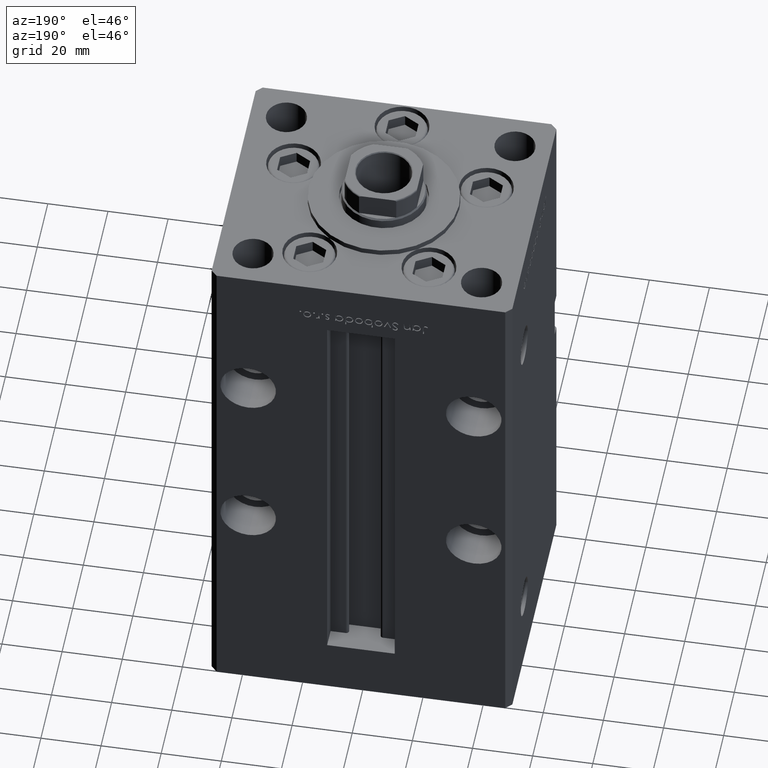
[diagram: clean part render]
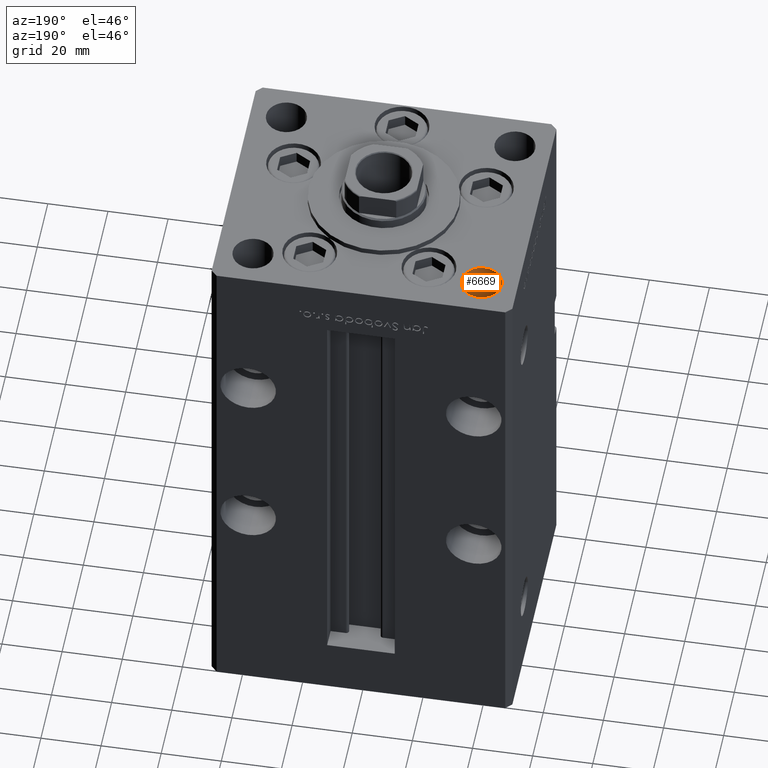
[diagram: same view with one face highlighted and labeled with its STEP entity id]
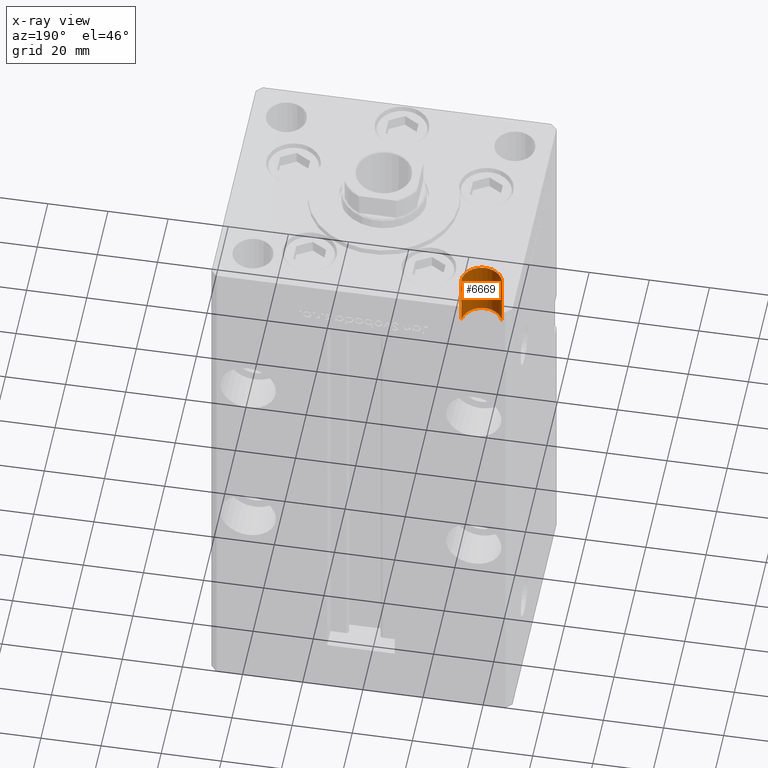
[diagram: x-ray of the same camera — body ghosted, the highlighted face saturated]
A machine part, auxiliary view. The second image highlights one B-rep face of the part: STEP entity #6669.
The next image is the same camera in x-ray: the body ghosted, the highlighted face saturated — about 0% of this face is hidden behind the body in this view.
In plain terms, the highlighted cylindrical surface (edge-blend (fillet) strip) has radius 6.75 mm, axis along (0, 0, 1).
Its self-contained STEP definition (entity closure, byte-faithful):
#6669 = ADVANCED_FACE ( 'NONE', ( #48586 ), #48859, .F. ) ;
#7175 = ORIENTED_EDGE ( 'NONE', *, *, #39686, .T. ) ;
#8993 = CARTESIAN_POINT ( 'NONE',  ( -44.75000000000000000, 31.50000000000000000, -19.00000000000000000 ) ) ;
#10897 = AXIS2_PLACEMENT_3D ( 'NONE', #43697, #29062, #20182 ) ;
#11010 = EDGE_CURVE ( 'NONE', #33650, #18870, #35337, .T. ) ;
#12252 = DIRECTION ( 'NONE',  ( 1.000000000000000000, 0.000000000000000000, 0.000000000000000000 ) ) ;
#15360 = AXIS2_PLACEMENT_3D ( 'NONE', #49123, #20615, #12252 ) ;
#16271 = EDGE_LOOP ( 'NONE', ( #7175, #44260, #48584, #40752 ) ) ;
#18870 = VERTEX_POINT ( 'NONE', #50370 ) ;
#19446 = DIRECTION ( 'NONE',  ( -1.000000000000000000, 0.000000000000000000, 0.000000000000000000 ) ) ;
#20182 = DIRECTION ( 'NONE',  ( -1.000000000000000000, 0.000000000000000000, 0.000000000000000000 ) ) ;
#20615 = DIRECTION ( 'NONE',  ( -0.000000000000000000, -0.000000000000000000, 1.000000000000000000 ) ) ;
#21058 = CARTESIAN_POINT ( 'NONE',  ( -31.25000000000000000, 31.50000000000000000, -19.00000000000000000 ) ) ;
#22849 = EDGE_CURVE ( 'NONE', #38563, #32196, #50419, .T. ) ;
#24087 = VECTOR ( 'NONE', #47992, 1000.000000000000000 ) ;
#29023 = CIRCLE ( 'NONE', #47082, 6.749999999999999112 ) ;
#29062 = DIRECTION ( 'NONE',  ( -0.000000000000000000, -0.000000000000000000, -1.000000000000000000 ) ) ;
#30624 = CARTESIAN_POINT ( 'NONE',  ( -44.75000000000000000, 31.50000000000000000, 0.000000000000000000 ) ) ;
#32196 = VERTEX_POINT ( 'NONE', #30624 ) ;
#32346 = CARTESIAN_POINT ( 'NONE',  ( -31.25000000000000000, 31.50000000000000000, -19.00000000000000000 ) ) ;
#32349 = CIRCLE ( 'NONE', #10897, 6.749999999999999112 ) ;
#33650 = VERTEX_POINT ( 'NONE', #21058 ) ;
#35337 = LINE ( 'NONE', #32346, #24087 ) ;
#38563 = VERTEX_POINT ( 'NONE', #43154 ) ;
#39686 = EDGE_CURVE ( 'NONE', #33650, #38563, #32349, .T. ) ;
#39710 = VECTOR ( 'NONE', #41568, 1000.000000000000000 ) ;
#40752 = ORIENTED_EDGE ( 'NONE', *, *, #11010, .F. ) ;
#40958 = DIRECTION ( 'NONE',  ( -0.000000000000000000, -0.000000000000000000, -1.000000000000000000 ) ) ;
#41568 = DIRECTION ( 'NONE',  ( -0.000000000000000000, -0.000000000000000000, 1.000000000000000000 ) ) ;
#43154 = CARTESIAN_POINT ( 'NONE',  ( -44.75000000000000000, 31.50000000000000000, -19.00000000000000000 ) ) ;
#43697 = CARTESIAN_POINT ( 'NONE',  ( -38.00000000000000000, 31.50000000000000000, -19.00000000000000000 ) ) ;
#44260 = ORIENTED_EDGE ( 'NONE', *, *, #22849, .T. ) ;
#47082 = AXIS2_PLACEMENT_3D ( 'NONE', #49024, #40958, #19446 ) ;
#47903 = EDGE_CURVE ( 'NONE', #18870, #32196, #29023, .T. ) ;
#47992 = DIRECTION ( 'NONE',  ( -0.000000000000000000, -0.000000000000000000, 1.000000000000000000 ) ) ;
#48584 = ORIENTED_EDGE ( 'NONE', *, *, #47903, .F. ) ;
#48586 = FACE_OUTER_BOUND ( 'NONE', #16271, .T. ) ;
#48859 = CYLINDRICAL_SURFACE ( 'NONE', #15360, 6.749999999999999112 ) ;
#49024 = CARTESIAN_POINT ( 'NONE',  ( -38.00000000000000000, 31.50000000000000000, 0.000000000000000000 ) ) ;
#49123 = CARTESIAN_POINT ( 'NONE',  ( -38.00000000000000000, 31.50000000000000000, -19.00000000000000000 ) ) ;
#50370 = CARTESIAN_POINT ( 'NONE',  ( -31.25000000000000000, 31.50000000000000000, 0.000000000000000000 ) ) ;
#50419 = LINE ( 'NONE', #8993, #39710 ) ;